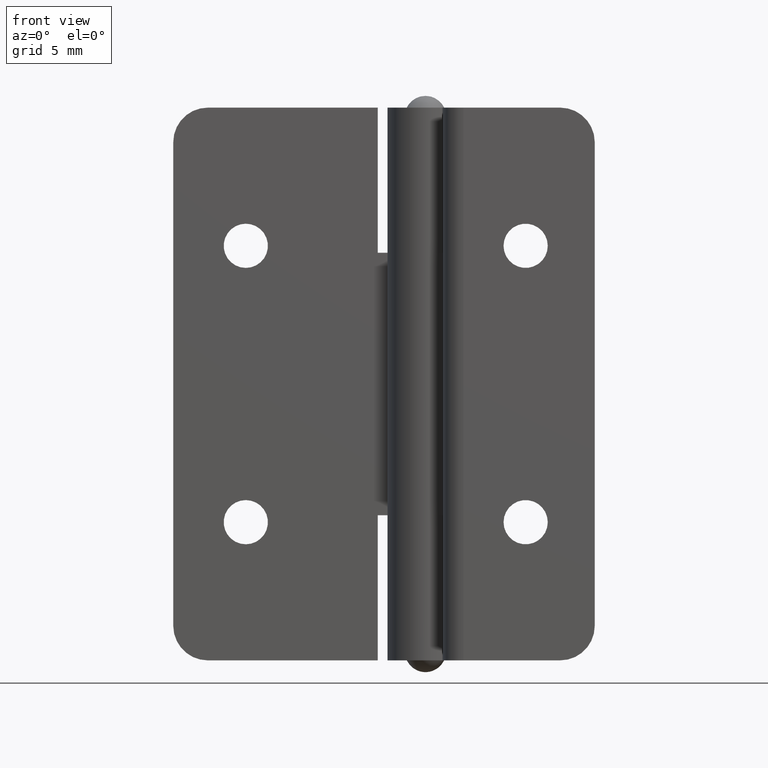
[diagram: clean part render]
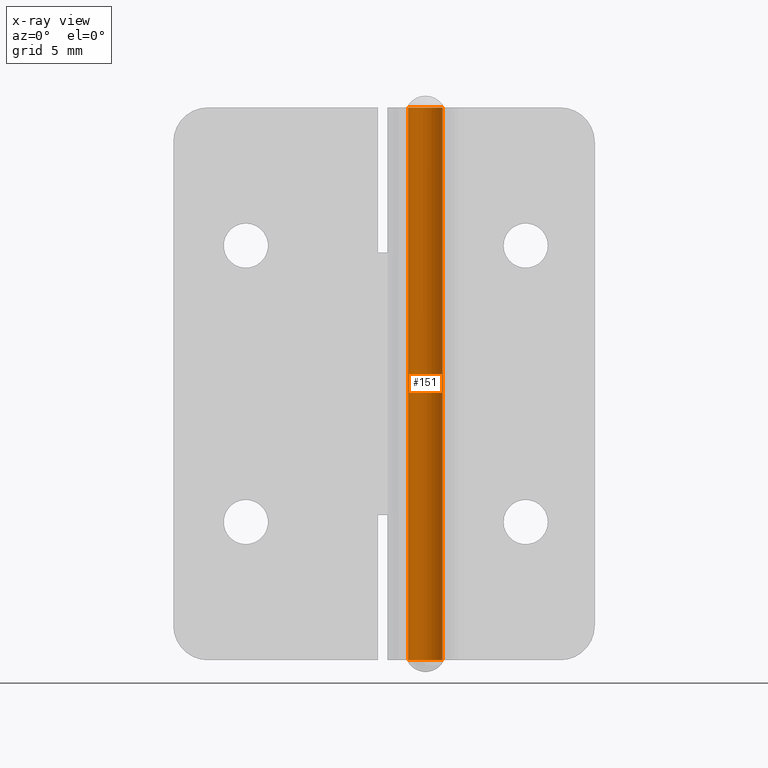
[diagram: x-ray — body ghosted, one internal face saturated and labeled with its STEP entity id]
A machine part, front view, then the same camera in x-ray: the body is ghosted and one INTERNAL B-rep face — a face not visible from any outside direction — is saturated and labeled: STEP entity #151.
In plain terms, the highlighted cylindrical surface (edge-blend (fillet) strip) has radius 1.25 mm, axis along (0, 0, 1).
Its self-contained STEP definition (entity closure, byte-faithful):
#151=ADVANCED_FACE('',(#221),#220,.T.);
#220=CYLINDRICAL_SURFACE('',#713,1.24999999993E+00);
#221=FACE_OUTER_BOUND('',#714,.T.);
#710=CARTESIAN_POINT('',(-7.16795511835E-11,0.00000000000E+00,0.00000000000E+00));
#711=DIRECTION('',(0.00000000000E+00,-0.00000000000E+00,1.00000000000E+00));
#712=DIRECTION('',(1.00000000000E+00,-0.00000000000E+00,-0.00000000000E+00));
#713=AXIS2_PLACEMENT_3D('',#710,#711,#712);
#714=EDGE_LOOP('',(#961,#962,#963,#964));
#961=ORIENTED_EDGE('',*,*,#1210,.T.);
#962=ORIENTED_EDGE('',*,*,#1211,.F.);
#963=ORIENTED_EDGE('',*,*,#1205,.F.);
#964=ORIENTED_EDGE('',*,*,#1212,.T.);
#1205=EDGE_CURVE('',#1342,#1343,#1344,.T.);
#1210=EDGE_CURVE('',#1371,#1370,#1378,.T.);
#1211=EDGE_CURVE('',#1343,#1370,#1384,.T.);
#1212=EDGE_CURVE('',#1342,#1371,#1390,.T.);
#1342=VERTEX_POINT('',#2172);
#1343=VERTEX_POINT('',#2173);
#1344=CIRCLE('',#2177,1.24999999996E+00);
#1370=VERTEX_POINT('',#2192);
#1371=VERTEX_POINT('',#2193);
#1378=CIRCLE('',#2201,1.24999999989E+00);
#1384=(BOUNDED_CURVE() B_SPLINE_CURVE(1,(#2202,#2203),.UNSPECIFIED.,.F.,.F.) B_SPLINE_CURVE_WITH_KNOTS((2,2),(8.33333335810E-02,9.16666666255E-01),.UNSPECIFIED.) CURVE() GEOMETRIC_REPRESENTATION_ITEM() RATIONAL_B_SPLINE_CURVE((1.00000000000E+00,1.00000000000E+00)) REPRESENTATION_ITEM('') );
#1390=(BOUNDED_CURVE() B_SPLINE_CURVE(1,(#2204,#2205),.UNSPECIFIED.,.F.,.F.) B_SPLINE_CURVE_WITH_KNOTS((2,2),(8.33333333333E-02,9.16666666667E-01),.UNSPECIFIED.) CURVE() GEOMETRIC_REPRESENTATION_ITEM() RATIONAL_B_SPLINE_CURVE((7.50000000000E-01,7.50000000000E-01)) REPRESENTATION_ITEM('') );
#2172=CARTESIAN_POINT('',(-1.25000000003E+00,0.00000000000E+00,-4.08500000000E+01));
#2173=CARTESIAN_POINT('',(1.24999999989E+00,7.40148683083E-17,-4.08500000000E+01));
#2174=CARTESIAN_POINT('',(-7.16795511835E-11,0.00000000000E+00,-4.08500000000E+01));
#2175=DIRECTION('',(-0.00000000000E+00,0.00000000000E+00,-1.00000000000E+00));
#2176=DIRECTION('',(-1.00000000000E+00,-1.22460635382E-16,0.00000000000E+00));
#2177=AXIS2_PLACEMENT_3D('',#2174,#2175,#2176);
#2192=CARTESIAN_POINT('',(1.24999999982E+00,7.40148683083E-17,-8.50000000004E-01));
#2193=CARTESIAN_POINT('',(-1.24999999996E+00,0.00000000000E+00,-8.50000000004E-01));
#2198=CARTESIAN_POINT('',(-7.16795511835E-11,0.00000000000E+00,-8.50000000004E-01));
#2199=DIRECTION('',(-0.00000000000E+00,0.00000000000E+00,-1.00000000000E+00));
#2200=DIRECTION('',(-1.00000000000E+00,-1.22460635382E-16,0.00000000000E+00));
#2201=AXIS2_PLACEMENT_3D('',#2198,#2199,#2200);
#2202=CARTESIAN_POINT('',(1.24999999985E+00,0.00000000000E+00,-4.08499999882E+01));
#2203=CARTESIAN_POINT('',(1.24999999985E+00,0.00000000000E+00,-8.50000019746E-01));
#2204=CARTESIAN_POINT('',(-1.25000000000E+00,-7.40148683083E-17,-4.08500000000E+01));
#2205=CARTESIAN_POINT('',(-1.25000000000E+00,-7.40148683083E-17,-8.50000000004E-01));